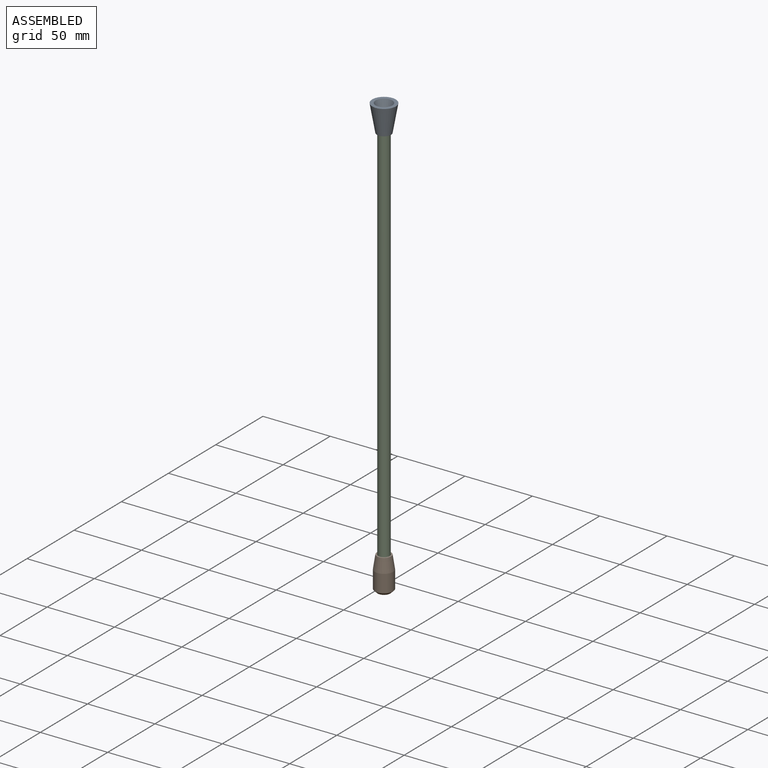
[diagram: assembled view]
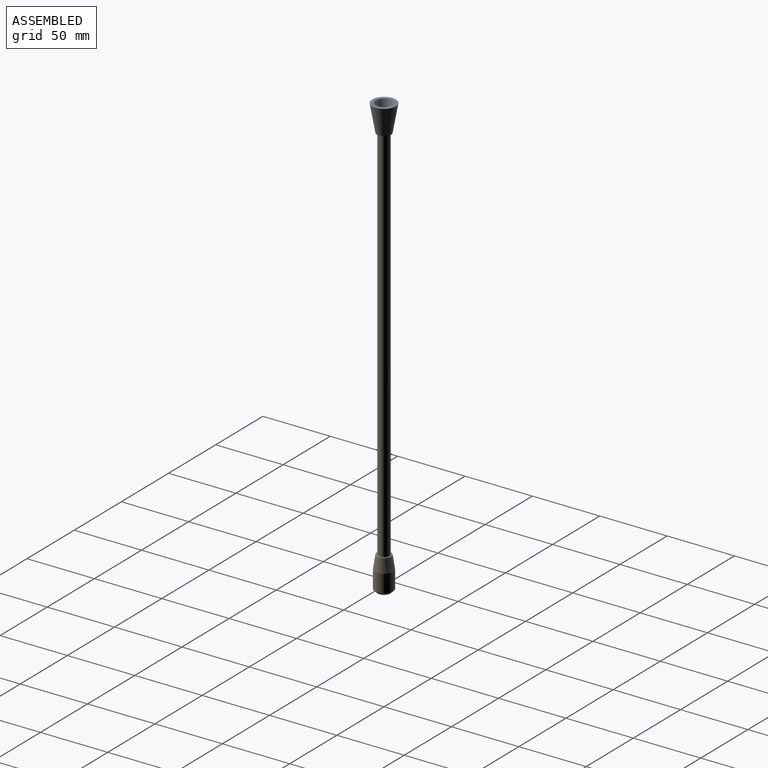
[diagram: assembled view, second angle]
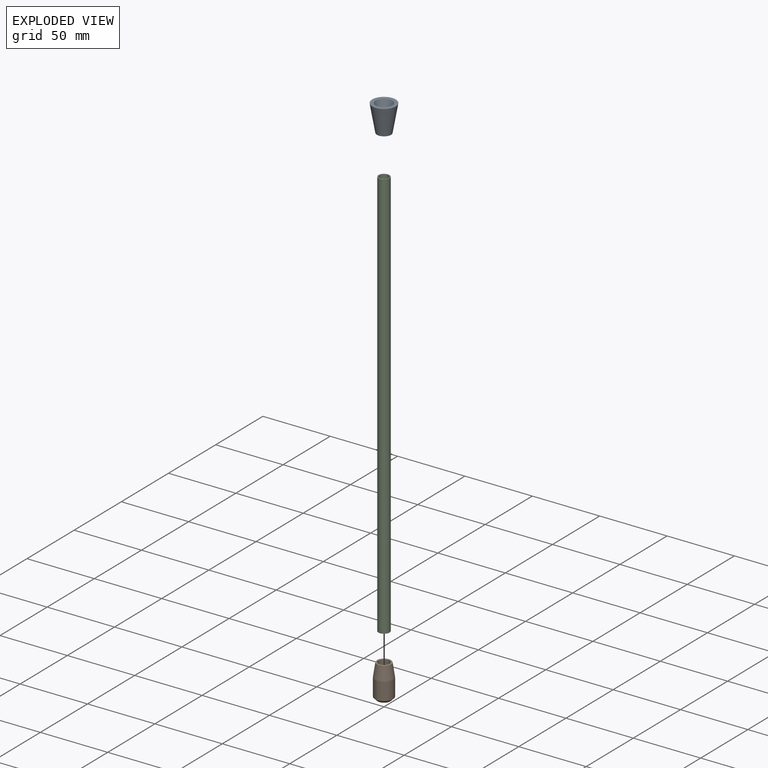
[diagram: exploded view]
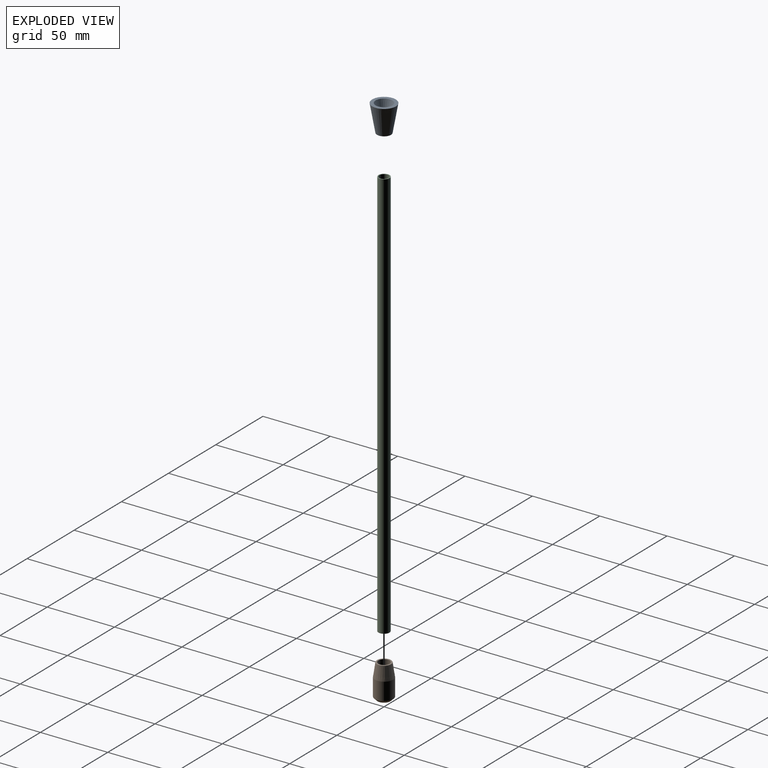
[diagram: exploded view, second angle]
ASSEMBLY  parts=3 mates=2
PART A: 7 faces, bbox 17.6x17.6x20 mm
  f0: cone r=5.25mm half-angle=10deg, axis (0,0,1), area 894.9mm2, adj f1,f2
  f1: plane 17.55x17.55mm, normal (0,0,1), area 119.3mm2, adj f0,f6
  f2: plane 10.5x10.5mm, normal (0,0,-1), area 31.2mm2, adj f0,f3
  f3: cylinder r=4.2mm len=10mm, axis (0,0,-1), area 263.9mm2, adj f2,f4
  f4: plane 8.4x8.4mm, normal (0,0,-1), area 11.2mm2, adj f3,f5
  f5: cylinder r=3.75mm len=7.5mm, axis (0,0,-1), area 70.7mm2, adj f4,f6
  f6: cone r=6.25mm half-angle=19.7deg, axis (0,0,1), area 233.5mm2, adj f1,f5
PART B: 8 faces, bbox 13.5x13.5x25 mm
  f0: plane 8.4x8.4mm, normal (0,0,1), area 11.2mm2, adj f1,f4
  f1: cylinder r=3.75mm len=13mm, axis (0,0,1), area 306.3mm2, adj f0,f3
  f2: cylinder r=6.75mm len=13.5mm, axis (0,0,1), area 551.3mm2, adj f6,f7
  f3: plane 9.5x9.5mm, normal (0,0,-1), area 26.7mm2, adj f1,f6
  f4: cylinder r=4.2mm len=12mm, axis (0,0,-1), area 316.7mm2, adj f0,f5
  f5: plane 10.5x10.5mm, normal (0,0,1), area 31.2mm2, adj f4,f7
  f6: cone r=6.75mm half-angle=45deg, axis (0,0,1), area 102.2mm2, adj f2,f3
  f7: cone r=5.25mm half-angle=8.5deg, axis (0,0,-1), area 381.2mm2, adj f2,f5
PART C: 4 faces, bbox 8.2x8.2x304.8 mm
  f0: cylinder r=3.5mm len=304.8mm, axis (0,0,-1), area 6702.9mm2, adj f2,f3
  f1: cylinder r=4.1mm len=304.8mm, axis (0,0,-1), area 7852mm2, adj f2,f3
  f2: plane 8.2x8.2mm, normal (0,0,1), area 14.3mm2, adj f0,f1
  f3: plane 8.2x8.2mm, normal (0,0,-1), area 14.3mm2, adj f0,f1
PLACE A t=(0,0,282.8)mm
PLACE B at identity fixed
PLACE C t=(0,0,152.4)mm
MATE fastened B.f1 <-> C.f1  axis (0,0,1) through (0,0,0)mm
MATE fastened A.f5 <-> C.f1  axis (0,0,-1) through (0,0,304.8)mm
